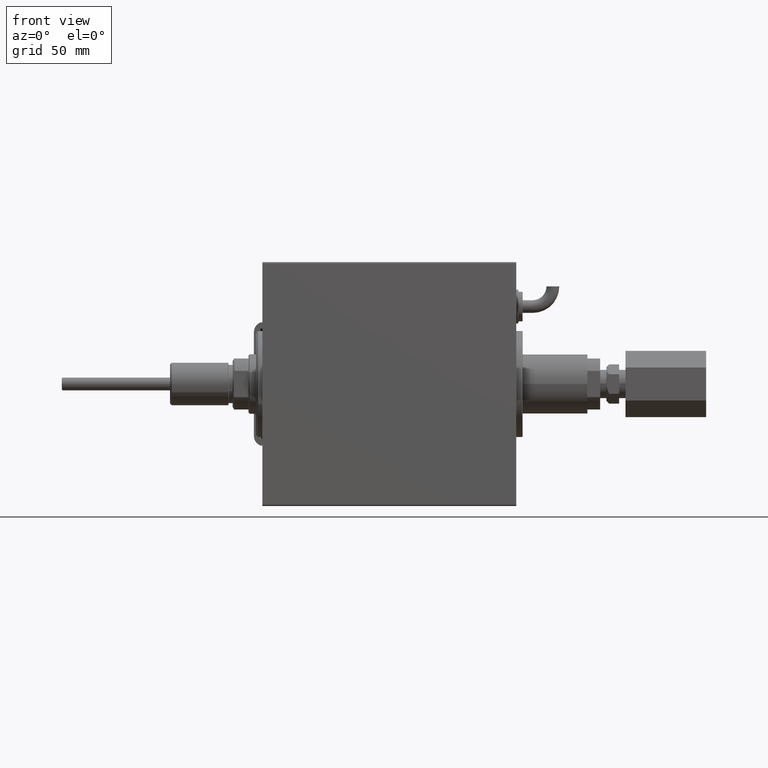
[diagram: clean part render]
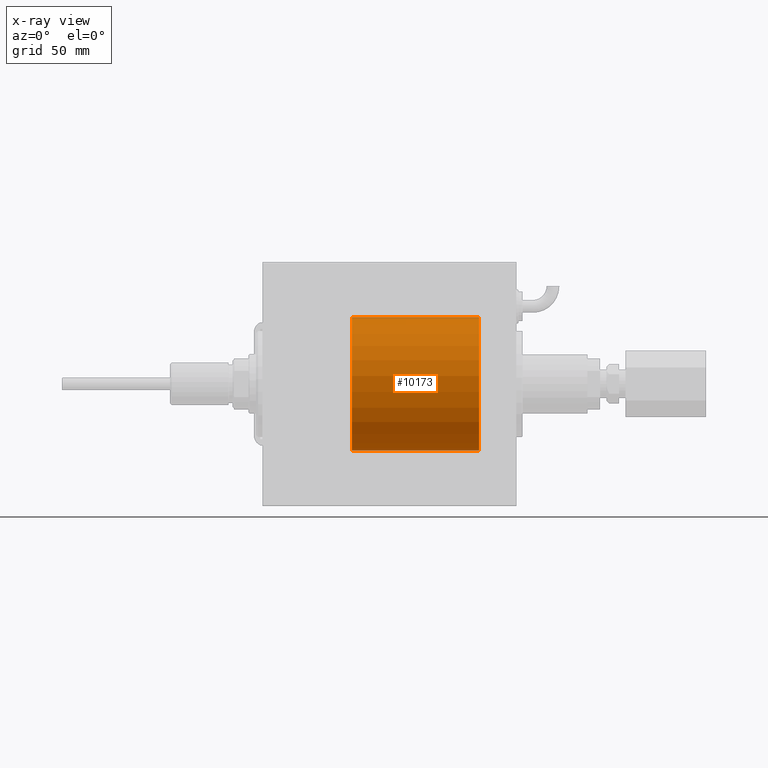
[diagram: x-ray — body ghosted, one internal face saturated and labeled with its STEP entity id]
A machine part, front view, then the same camera in x-ray: the body is ghosted and one INTERNAL B-rep face — a face not visible from any outside direction — is saturated and labeled: STEP entity #10173.
In plain terms, the highlighted cylindrical surface (partial cylindrical patch) has radius 31.5 mm, axis along (-1, -0, -0).
Its self-contained STEP definition (entity closure, byte-faithful):
#1644 = CARTESIAN_POINT ( 'NONE',  ( 93.68101509391517823, -0.3904857149112009873, -31.49817436802766935 ) ) ;
#1886 = VECTOR ( 'NONE', #14954, 1000.000000000000000 ) ;
#3289 = B_SPLINE_CURVE_WITH_KNOTS ( 'NONE', 3,
 ( #52961, #39669, #1644, #19898, #7190, #11218, #30705, #49538, #38751, #57596, #15241, #30098, #15555, #43682, #29490, #20199, #34432, #10907, #22028, #59115, #32228, #8398, #59718, #55095, #12439, #12132, #51072, #27270, #45822, #8704, #36560, #7490 ),
 .UNSPECIFIED., .F., .F.,
 ( 4, 2, 2, 2, 2, 2, 2, 2, 2, 2, 2, 2, 2, 2, 2, 4 ),
 ( 0.009384682587134676041, 0.009971088165454077001, 0.01055749374377347796, 0.01114389932209287892, 0.01173030490041227988, 0.01231671047873168258, 0.01290311605705108354, 0.01348952163537048624, 0.01407592721368988720, 0.01466233279200928816, 0.01524873837032868912, 0.01583514394864809008, 0.01642154952696749104, 0.01700795510528689547, 0.01759436068360629296, 0.01876717184024510182 ),
 .UNSPECIFIED. ) ;
#4543 = FACE_OUTER_BOUND ( 'NONE', #43460, .T. ) ;
#5106 = CARTESIAN_POINT ( 'NONE',  ( 87.70000000000000284, -1.457662500692042870E-14, -31.50000000000000000 ) ) ;
#5135 = CYLINDRICAL_SURFACE ( 'NONE', #45139, 31.50000000000000000 ) ;
#5662 = CARTESIAN_POINT ( 'NONE',  ( 102.2000000000000028, 3.857637417314162689E-15, -31.50000000000000000 ) ) ;
#5805 = VECTOR ( 'NONE', #40221, 1000.000000000000000 ) ;
#6739 = DIRECTION ( 'NONE',  ( 0.000000000000000000, 0.000000000000000000, 1.000000000000000000 ) ) ;
#7190 = CARTESIAN_POINT ( 'NONE',  ( 93.54660463742500554, -0.9669616078782005131, -31.48567319468627446 ) ) ;
#7232 = AXIS2_PLACEMENT_3D ( 'NONE', #20976, #35806, #6739 ) ;
#7490 = CARTESIAN_POINT ( 'NONE',  ( 87.70000000000000284, -1.457662500692042870E-14, -31.50000000000000000 ) ) ;
#7975 = AXIS2_PLACEMENT_3D ( 'NONE', #56099, #42191, #14049 ) ;
#8398 = CARTESIAN_POINT ( 'NONE',  ( 89.37134585312492163, -2.696917666262926172, -31.38442820068732075 ) ) ;
#8704 = CARTESIAN_POINT ( 'NONE',  ( 87.77979337049957564, -0.7905881588836303209, -31.49214662150069799 ) ) ;
#9722 = VERTEX_POINT ( 'NONE', #17329 ) ;
#10173 = ADVANCED_FACE ( 'NONE', ( #4543 ), #5135, .F. ) ;
#10872 = EDGE_CURVE ( 'NONE', #43555, #55664, #43773, .T. ) ;
#10907 = CARTESIAN_POINT ( 'NONE',  ( 90.50417705560563775, -3.000152387858503022, -31.35680286115500337 ) ) ;
#11218 = CARTESIAN_POINT ( 'NONE',  ( 93.39714238836697291, -1.328004386210309251, -31.47251238182140298 ) ) ;
#11457 = LINE ( 'NONE', #58445, #5805 ) ;
#12132 = CARTESIAN_POINT ( 'NONE',  ( 88.44175498096734600, -1.984587626072093824, -31.43772577203672469 ) ) ;
#12439 = CARTESIAN_POINT ( 'NONE',  ( 88.71856537126957676, -2.261012035264801323, -31.41905495618427935 ) ) ;
#13939 = CARTESIAN_POINT ( 'NONE',  ( 102.2000000000000028, 0.000000000000000000, 31.50000000000000000 ) ) ;
#14049 = DIRECTION ( 'NONE',  ( 0.000000000000000000, 0.000000000000000000, 1.000000000000000000 ) ) ;
#14954 = DIRECTION ( 'NONE',  ( -1.000000000000000000, -0.000000000000000000, -0.000000000000000000 ) ) ;
#15241 = CARTESIAN_POINT ( 'NONE',  ( 92.53043691487003741, -2.384935707362453527, -31.40977595730572958 ) ) ;
#15261 = EDGE_CURVE ( 'NONE', #57160, #9722, #19826, .T. ) ;
#15555 = CARTESIAN_POINT ( 'NONE',  ( 92.03239958099167950, -2.695056442718548606, -31.38458855656186941 ) ) ;
#17329 = CARTESIAN_POINT ( 'NONE',  ( 42.20000000000000284, 0.000000000000000000, 31.50000000000000000 ) ) ;
#17828 = LINE ( 'NONE', #41320, #29096 ) ;
#19078 = DIRECTION ( 'NONE',  ( 0.000000000000000000, 0.000000000000000000, 1.000000000000000000 ) ) ;
#19826 = CIRCLE ( 'NONE', #7975, 31.50000000000000000 ) ;
#19898 = CARTESIAN_POINT ( 'NONE',  ( 93.60419450738055502, -0.7775502215293849106, -31.49099686045558144 ) ) ;
#20199 = CARTESIAN_POINT ( 'NONE',  ( 91.09534111000094470, -2.980257240990070056, -31.35872356503798741 ) ) ;
#20976 = CARTESIAN_POINT ( 'NONE',  ( 102.2000000000000028, 0.000000000000000000, 0.000000000000000000 ) ) ;
#22028 = CARTESIAN_POINT ( 'NONE',  ( 90.30885452660058377, -2.980809450819718709, -31.35867074198615256 ) ) ;
#22448 = ORIENTED_EDGE ( 'NONE', *, *, #10872, .F. ) ;
#22943 = ORIENTED_EDGE ( 'NONE', *, *, #23320, .F. ) ;
#23320 = EDGE_CURVE ( 'NONE', #55664, #9722, #11457, .T. ) ;
#23709 = CARTESIAN_POINT ( 'NONE',  ( 102.2000000000000028, 0.000000000000000000, 0.000000000000000000 ) ) ;
#25837 = EDGE_CURVE ( 'NONE', #37188, #30431, #3289, .T. ) ;
#27270 = CARTESIAN_POINT ( 'NONE',  ( 88.09807859560848442, -1.506272792558350559, -31.46439306106695710 ) ) ;
#29096 = VECTOR ( 'NONE', #55217, 1000.000000000000000 ) ;
#29490 = CARTESIAN_POINT ( 'NONE',  ( 91.47881912642321822, -2.903733559410697662, -31.36590199989304395 ) ) ;
#30098 = CARTESIAN_POINT ( 'NONE',  ( 92.20456285006999053, -2.602826974226412737, -31.39247100434485560 ) ) ;
#30431 = VERTEX_POINT ( 'NONE', #5106 ) ;
#30705 = CARTESIAN_POINT ( 'NONE',  ( 93.30417781274726963, -1.502389880412997591, -31.46458023642405166 ) ) ;
#32063 = CARTESIAN_POINT ( 'NONE',  ( 42.20000000000000284, 3.857637417314162689E-15, -31.50000000000000000 ) ) ;
#32228 = CARTESIAN_POINT ( 'NONE',  ( 89.73484270189362633, -2.847307171789055236, -31.37114183851420179 ) ) ;
#32610 = ORIENTED_EDGE ( 'NONE', *, *, #25837, .T. ) ;
#33605 = DIRECTION ( 'NONE',  ( -1.000000000000000000, -0.000000000000000000, -0.000000000000000000 ) ) ;
#34432 = CARTESIAN_POINT ( 'NONE',  ( 90.90046458974094890, -2.999845816735311477, -31.35683219171744796 ) ) ;
#35806 = DIRECTION ( 'NONE',  ( -1.000000000000000000, 0.000000000000000000, 0.000000000000000000 ) ) ;
#36560 = CARTESIAN_POINT ( 'NONE',  ( 87.70000000000000284, -0.3965830985361892824, -31.50000000000000000 ) ) ;
#37188 = VERTEX_POINT ( 'NONE', #53776 ) ;
#37724 = ORIENTED_EDGE ( 'NONE', *, *, #56181, .T. ) ;
#38751 = CARTESIAN_POINT ( 'NONE',  ( 92.96095462456129610, -1.981494824113335218, -31.43792153503155973 ) ) ;
#39669 = CARTESIAN_POINT ( 'NONE',  ( 93.70000000000001705, -0.1958045626907428394, -31.50000000000000000 ) ) ;
#40221 = DIRECTION ( 'NONE',  ( -1.000000000000000000, -0.000000000000000000, -0.000000000000000000 ) ) ;
#41320 = CARTESIAN_POINT ( 'NONE',  ( 102.2000000000000028, 3.857637417314162689E-15, -31.50000000000000000 ) ) ;
#42191 = DIRECTION ( 'NONE',  ( -1.000000000000000000, 0.000000000000000000, 0.000000000000000000 ) ) ;
#42966 = ORIENTED_EDGE ( 'NONE', *, *, #15261, .T. ) ;
#43059 = CARTESIAN_POINT ( 'NONE',  ( 102.2000000000000028, 3.857637417314162689E-15, -31.50000000000000000 ) ) ;
#43460 = EDGE_LOOP ( 'NONE', ( #22448, #45456, #32610, #37724, #42966, #22943 ) ) ;
#43555 = VERTEX_POINT ( 'NONE', #43059 ) ;
#43682 = CARTESIAN_POINT ( 'NONE',  ( 91.66944455658521917, -2.845838211243349569, -31.37127560316186603 ) ) ;
#43773 = CIRCLE ( 'NONE', #7232, 31.50000000000000000 ) ;
#45061 = EDGE_CURVE ( 'NONE', #43555, #37188, #57010, .T. ) ;
#45139 = AXIS2_PLACEMENT_3D ( 'NONE', #23709, #33605, #19078 ) ;
#45456 = ORIENTED_EDGE ( 'NONE', *, *, #45061, .T. ) ;
#45822 = CARTESIAN_POINT ( 'NONE',  ( 88.00470357640989505, -1.331741824817676223, -31.47235367475392920 ) ) ;
#49538 = CARTESIAN_POINT ( 'NONE',  ( 93.08501442276926241, -1.830470878313876559, -31.44719957596828763 ) ) ;
#51072 = CARTESIAN_POINT ( 'NONE',  ( 88.31753127733372821, -1.833765390051066424, -31.44700610425690002 ) ) ;
#52961 = CARTESIAN_POINT ( 'NONE',  ( 93.70000000000000284, 3.857637396144153386E-15, -31.50000000000000000 ) ) ;
#53776 = CARTESIAN_POINT ( 'NONE',  ( 93.70000000000000284, 3.857637396144153386E-15, -31.50000000000000000 ) ) ;
#55095 = CARTESIAN_POINT ( 'NONE',  ( 88.87295774629731682, -2.387531469909793813, -31.40957782495775419 ) ) ;
#55217 = DIRECTION ( 'NONE',  ( -1.000000000000000000, -0.000000000000000000, -0.000000000000000000 ) ) ;
#55664 = VERTEX_POINT ( 'NONE', #13939 ) ;
#56099 = CARTESIAN_POINT ( 'NONE',  ( 42.20000000000000284, 0.000000000000000000, 0.000000000000000000 ) ) ;
#56181 = EDGE_CURVE ( 'NONE', #30431, #57160, #17828, .T. ) ;
#57010 = LINE ( 'NONE', #5662, #1886 ) ;
#57160 = VERTEX_POINT ( 'NONE', #32063 ) ;
#57596 = CARTESIAN_POINT ( 'NONE',  ( 92.68460359924667102, -2.258226318633793195, -31.41925597582825702 ) ) ;
#58445 = CARTESIAN_POINT ( 'NONE',  ( 102.2000000000000028, 0.000000000000000000, 31.50000000000000000 ) ) ;
#59115 = CARTESIAN_POINT ( 'NONE',  ( 89.92530905565628530, -2.904836261170123279, -31.36579955910873707 ) ) ;
#59718 = CARTESIAN_POINT ( 'NONE',  ( 89.19901843703853217, -2.604888532024811187, -31.39229907792057972 ) ) ;